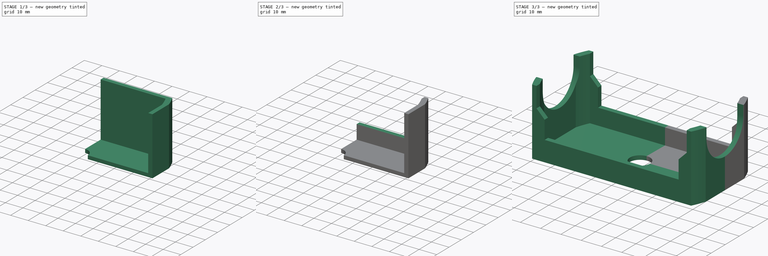
[diagram: build sequence overview — one tinted view per stage of 3, left to right]
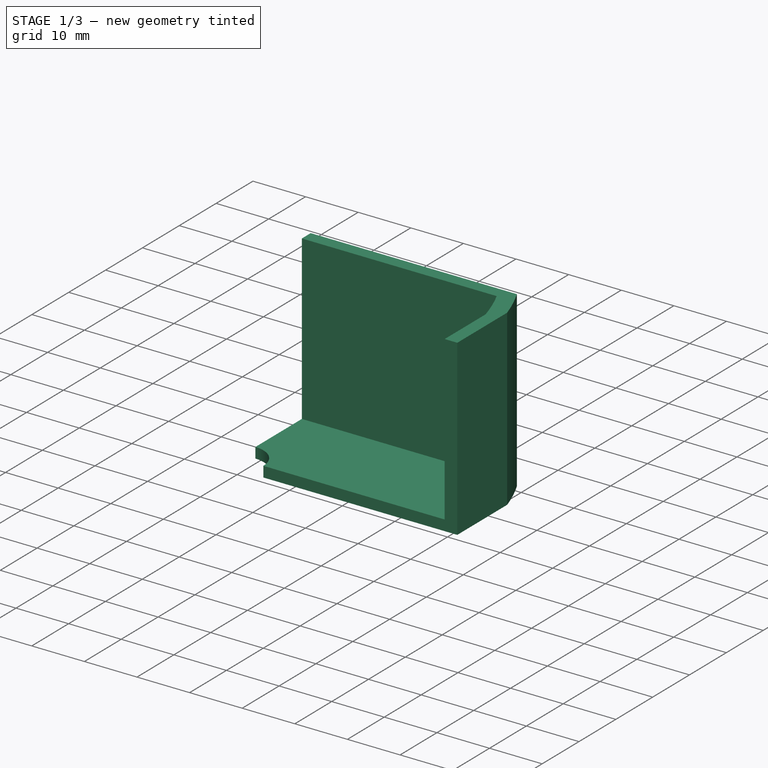
[diagram: stage 1 of 3 — iso view after this stage's code; geometry added in this stage tinted green]
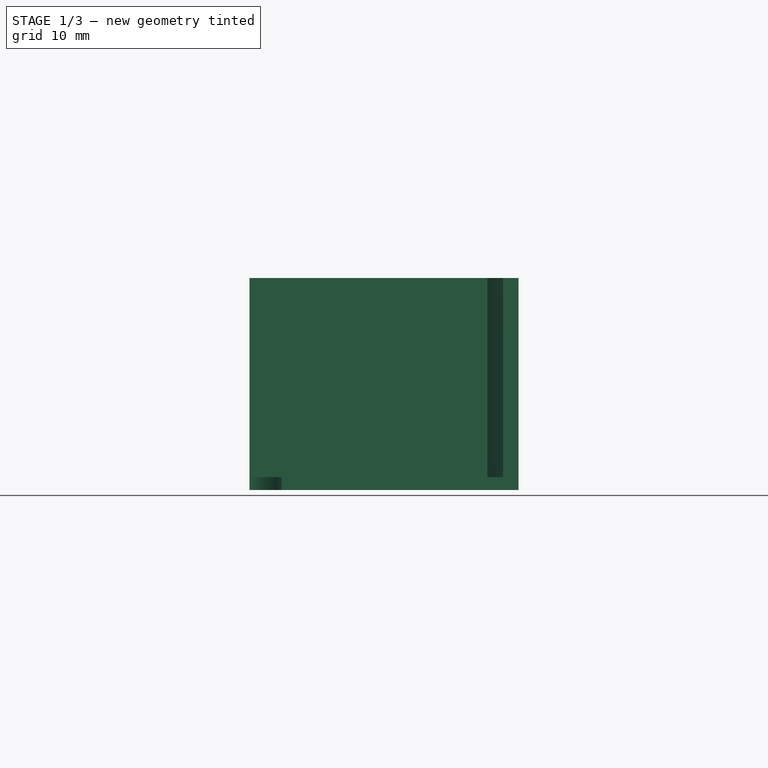
[diagram: stage 1 of 3 — front view after this stage's code; geometry added in this stage tinted green]
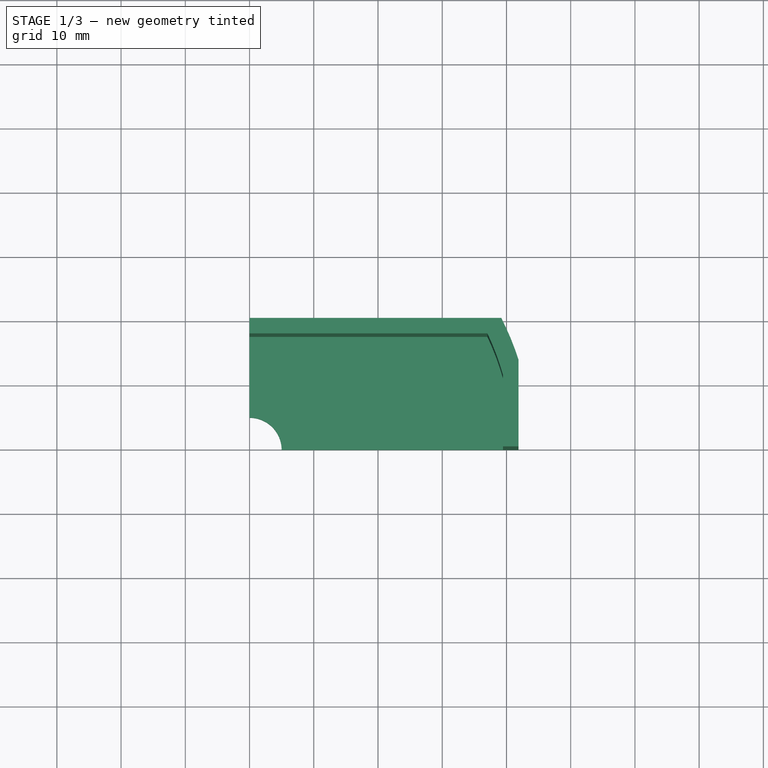
[diagram: stage 1 of 3 — top view after this stage's code; geometry added in this stage tinted green]
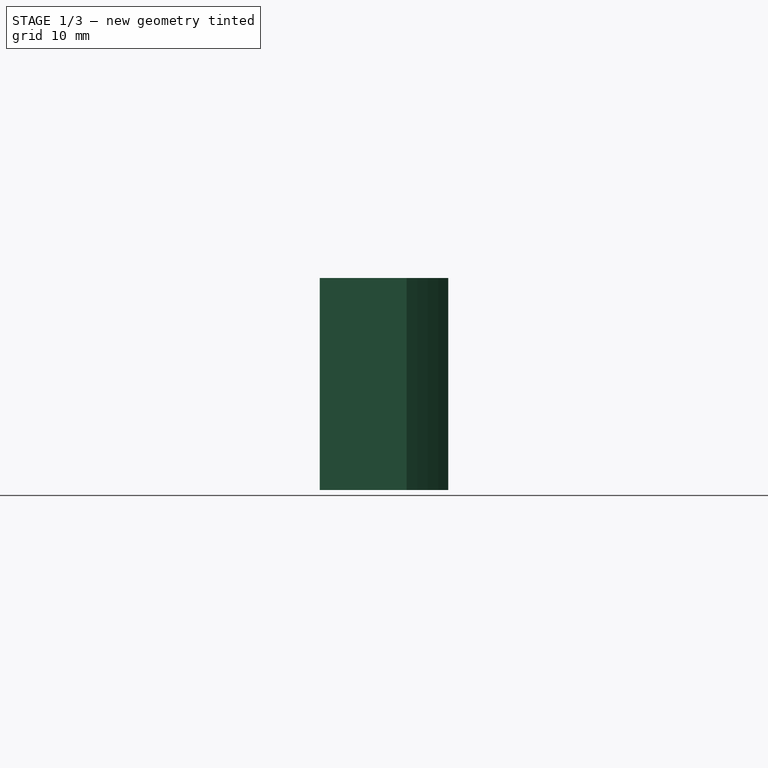
[diagram: stage 1 of 3 — right view after this stage's code; geometry added in this stage tinted green]
FCSTD DOCUMENT  (FreeCAD 0.19R24291 (Git))
Label: Позиционер кольца
License: All rights reserved
LicenseURL: http://en.wikipedia.org/wiki/All_rights_reserved
objects: Sketcher::SketchObject×4, PartDesign::Pad×2, PartDesign::Pocket×2, PartDesign::Mirrored×2, PartDesign::MultiTransform×1, PartDesign::Body×1
note: 16 computed .brp shape members not serialized (recipe doc carries the construction recipe); baked Part::Feature solids carry a one-line shape summary decoded from their .brp

FEATURE [Sketcher::SketchObject] Sketch
  FullyConstrained = true
  MapMode = 5
  Support = -> [XY_Plane]
  sketch-geometry (6):
    g0: ArcOfCircle CenterX=0 CenterY=0 CenterZ=0 NormalX=0 NormalY=0 NormalZ=1 AngleXU=0 Radius=5 StartAngle=0 EndAngle=1.5708
    g1: LineSegment StartX=0 StartY=5 StartZ=0 EndX=0 EndY=20 EndZ=0
    g2: ArcOfCircle CenterX=0 CenterY=0 CenterZ=0 NormalX=0 NormalY=0 NormalZ=1 AngleXU=0 Radius=44 StartAngle=0.312603 EndAngle=0.471862
    g3: LineSegment StartX=0 StartY=20 StartZ=0 EndX=39.1918 EndY=20 EndZ=0
    g4: LineSegment StartX=41.8676 StartY=13.5316 StartZ=0 EndX=41.8676 EndY=0 EndZ=0
    g5: LineSegment StartX=41.8676 StartY=0 StartZ=0 EndX=5 EndY=0 EndZ=0
  constraints (19):
    c: Coincident(g0,g-1)
    c: PointOnObject(g0,g-2)
    c: PointOnObject(g0,g-1)
    c: Coincident(g1,g0)
    c: PointOnObject(g1,g-2)
    c: Coincident(g2,g0)
    c: Coincident(g3,g1)
    c: Coincident(g3,g2)
    c: Horizontal(g3)
    c: Coincident(g4,g2)
    c: PointOnObject(g4,g-1)
    c: Vertical(g4)
    c: Coincident(g5,g4)
    c: Coincident(g5,g0)
    c: Diameter(g0) = 10
    c: Diameter(g2) = 88
    c: Distance(g1,g0) = 20
    c: Distance(g2,g2) = 7
    c: Distance(g3) = 39.1918
FEATURE [PartDesign::Pad] Pad
  Direction = (1,1,1)
  Length = 2
  Length2 = 100
  Profile = -> Sketch
  Type = 0
FEATURE [Sketcher::SketchObject] Sketch001
  FullyConstrained = true
  MapMode = 5
  Support = -> [XY_Plane]
  sketch-geometry (8):
    g0: ArcOfCircle CenterX=0 CenterY=0 CenterZ=0 NormalX=0 NormalY=0 NormalZ=1 AngleXU=0 Radius=44 StartAngle=0.312603 EndAngle=0.471862
    g1: ArcOfCircle CenterX=0 CenterY=0 CenterZ=0 NormalX=0 NormalY=0 NormalZ=1 AngleXU=0 Radius=41 StartAngle=0.274265 EndAngle=0.443682
    g2: LineSegment StartX=37.0303 StartY=17.6 StartZ=0 EndX=0 EndY=17.6 EndZ=0
    g3: LineSegment StartX=0 StartY=17.6 StartZ=0 EndX=0 EndY=20 EndZ=0
    g4: LineSegment StartX=0 StartY=20 StartZ=0 EndX=39.1918 EndY=20 EndZ=0
    g5: LineSegment StartX=39.4676 StartY=11.1044 StartZ=0 EndX=39.4676 EndY=0 EndZ=0
    g6: LineSegment StartX=39.4676 StartY=0 StartZ=0 EndX=41.8676 EndY=0 EndZ=0
    g7: LineSegment StartX=41.8676 StartY=0 StartZ=0 EndX=41.8676 EndY=13.5316 EndZ=0
  constraints (25):
    c: Coincident(g0,g-1)
    c: Coincident(g1,g0)
    c: Coincident(g2,g1)
    c: PointOnObject(g2,g-2)
    c: Horizontal(g2)
    c: Coincident(g3,g2)
    c: PointOnObject(g3,g-2)
    c: Coincident(g4,g3)
    c: Coincident(g4,g0)
    c: Horizontal(g4)
    c: Coincident(g5,g1)
    c: PointOnObject(g5,g-1)
    c: Vertical(g5)
    c: Coincident(g6,g5)
    c: PointOnObject(g6,g-1)
    c: Coincident(g7,g6)
    c: Coincident(g7,g0)
    c: Vertical(g7)
    c: Distance(g6) = 2.4
    c: Distance(g3) = 2.4
    c: Diameter(g1) = 82
    c: Diameter(g0) = 88
    c: Distance(g3,g0) = 20
    c: Distance(g0,g4) = 7
    c: Distance(g2) = 37.0303
FEATURE [PartDesign::Pad] Pad001
  BaseFeature = -> Pad
  Direction = (1,1,1)
  Length = 33
  Length2 = 100
  Profile = -> Sketch001
  Type = 0
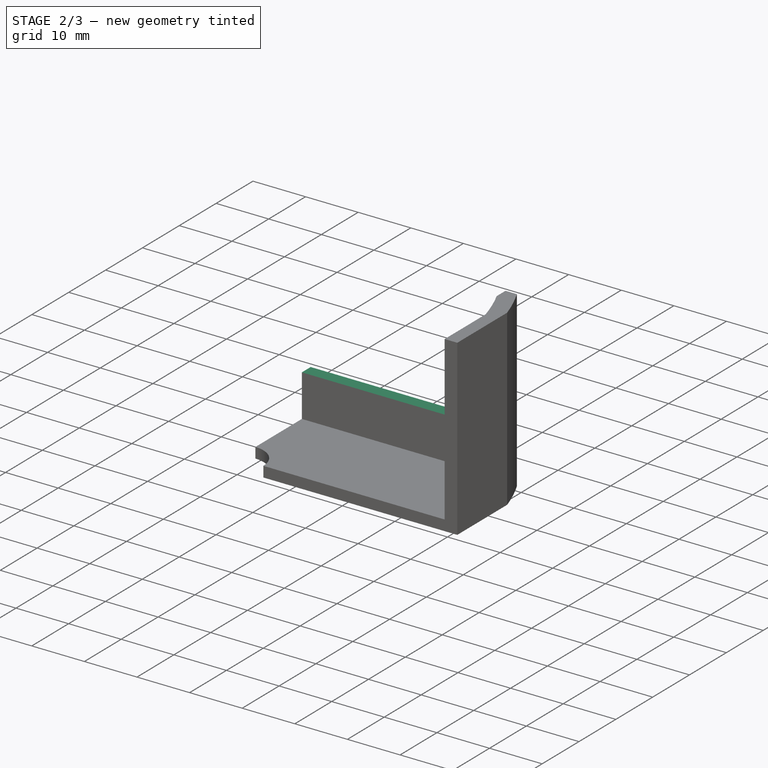
[diagram: stage 2 of 3 — iso view after this stage's code; geometry added in this stage tinted green]
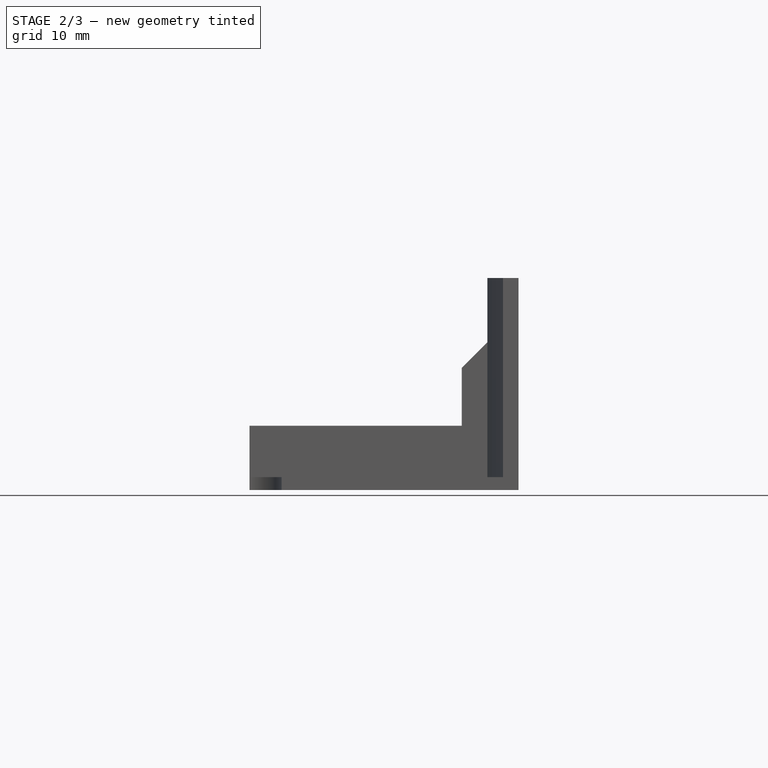
[diagram: stage 2 of 3 — front view after this stage's code; geometry added in this stage tinted green]
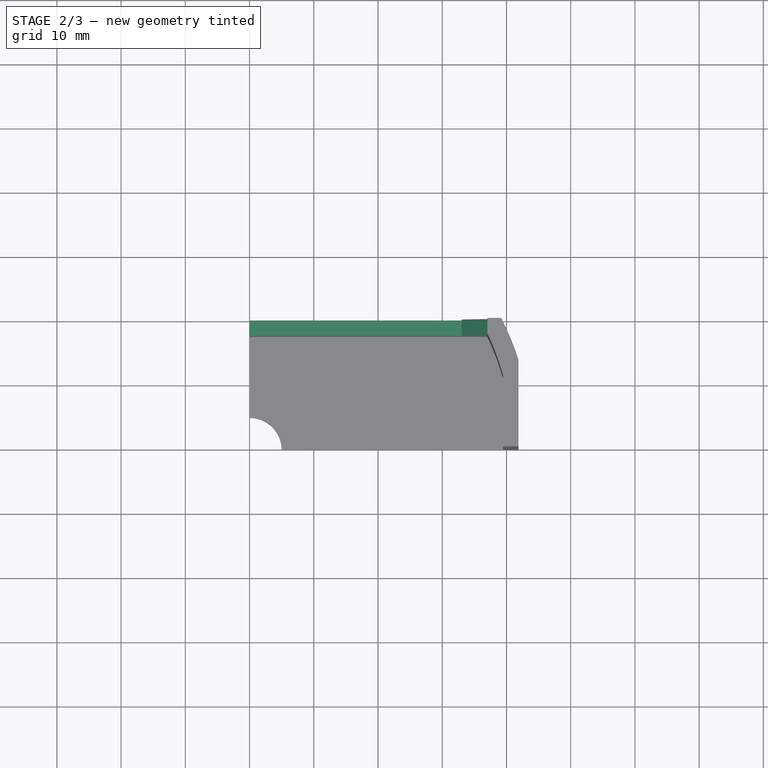
[diagram: stage 2 of 3 — top view after this stage's code; geometry added in this stage tinted green]
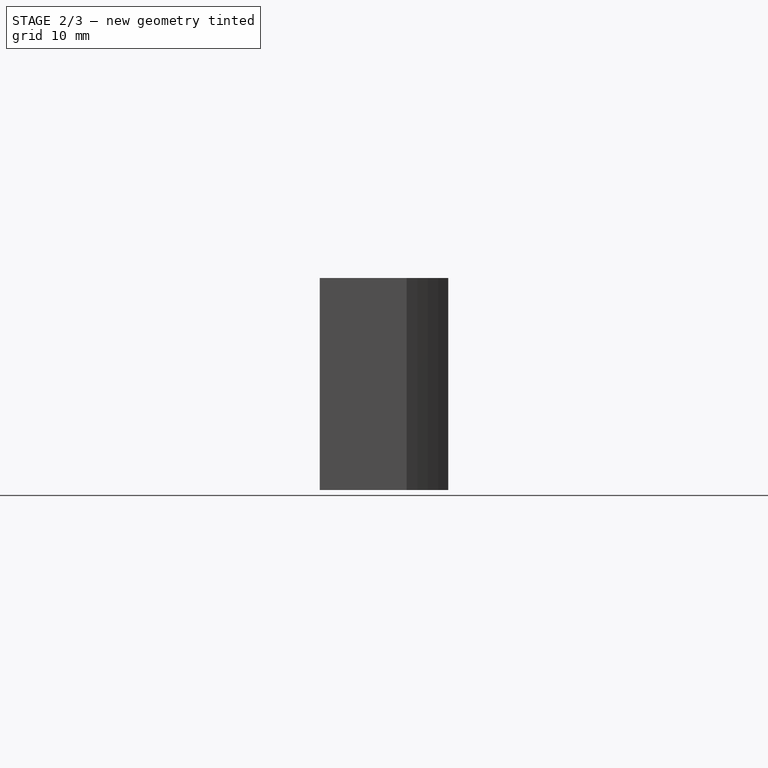
[diagram: stage 2 of 3 — right view after this stage's code; geometry added in this stage tinted green]
FEATURE [Sketcher::SketchObject] Sketch002
  FullyConstrained = true
  MapMode = 5
  Placement = pos=(0,0,0) rot=(1,0,0;1.5708rad)
  Support = -> [XZ_Plane]
  expr: Constraints[16] = Sketch001.Constraints[24]
  expr: Constraints[12] = Pad001.Length
  sketch-geometry (6):
    g0: LineSegment StartX=0 StartY=10 StartZ=0 EndX=33.0303 EndY=10 EndZ=0
    g1: LineSegment StartX=33.0303 StartY=10 StartZ=0 EndX=33.0303 EndY=19 EndZ=0
    g2: LineSegment StartX=33.0303 StartY=19 StartZ=0 EndX=37.0303 EndY=23 EndZ=0
    g3: LineSegment StartX=37.0303 StartY=23 StartZ=0 EndX=37.0303 EndY=33 EndZ=0
    g4: LineSegment StartX=37.0303 StartY=33 StartZ=0 EndX=0 EndY=33 EndZ=0
    g5: LineSegment StartX=0 StartY=33 StartZ=0 EndX=0 EndY=10 EndZ=0
  constraints (18):
    c: PointOnObject(g0,g-2)
    c: Horizontal(g0)
    c: Coincident(g1,g0)
    c: Vertical(g1)
    c: Coincident(g2,g1)
    c: Coincident(g3,g2)
    c: Vertical(g3)
    c: Coincident(g4,g3)
    c: PointOnObject(g4,g-2)
    c: Horizontal(g4)
    c: Coincident(g5,g4)
    c: Coincident(g5,g0)
    c: Distance(g-1,g4) = 33
    c: Distance(g-1,g0) = 10
    c: DistanceX(g1,g2) = 4
    c: Angle(g1,g2) = 2.35619
    c: Distance(g4) = 37.0303
    c: Distance(g3) = 10
FEATURE [PartDesign::Pocket] Pocket
  BaseFeature = -> Pad001
  Length = 5
  Length2 = 100
  Profile = -> Sketch002
  Type = 1
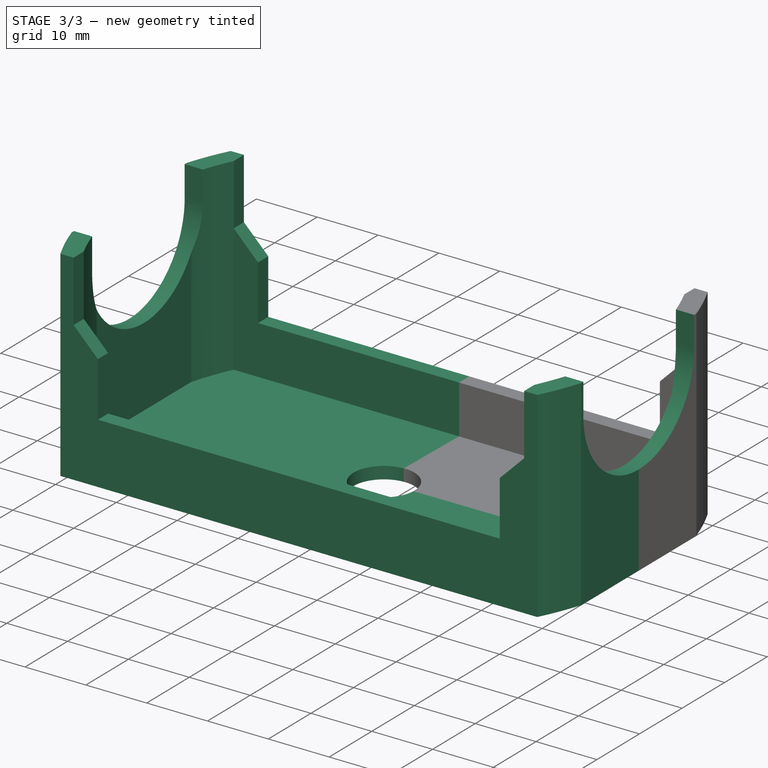
[diagram: stage 3 of 3 — iso view after this stage's code; geometry added in this stage tinted green]
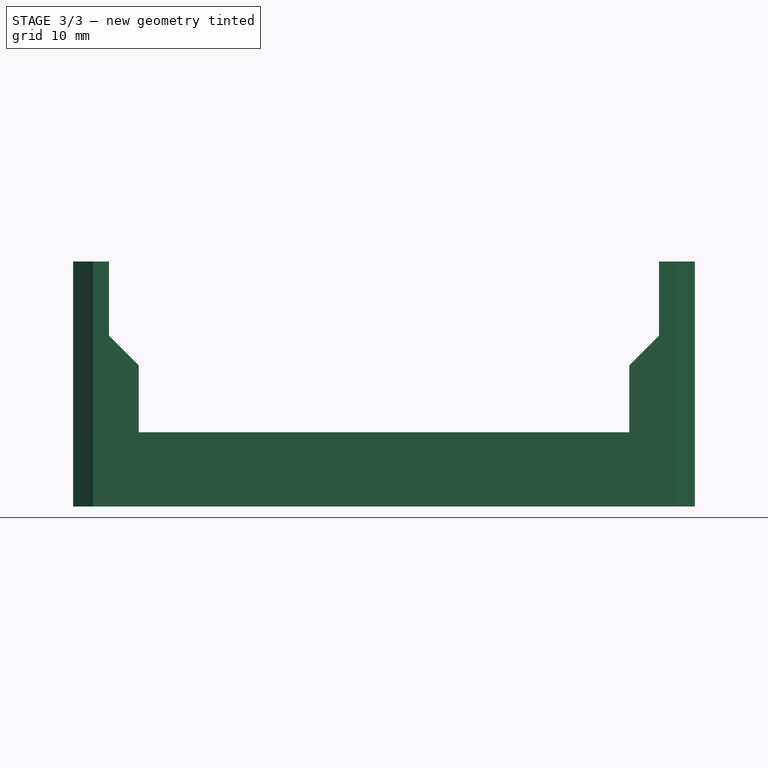
[diagram: stage 3 of 3 — front view after this stage's code; geometry added in this stage tinted green]
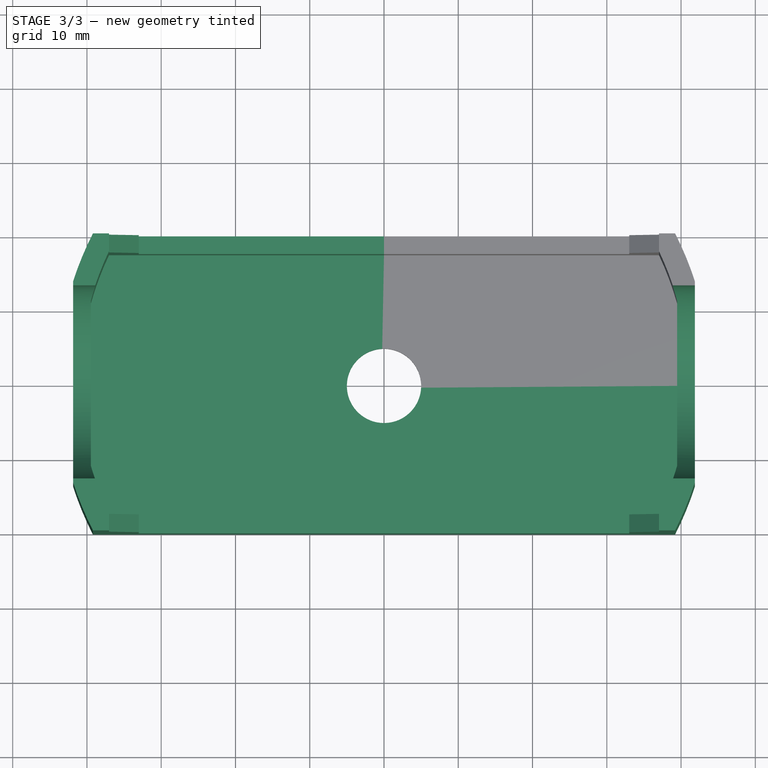
[diagram: stage 3 of 3 — top view after this stage's code; geometry added in this stage tinted green]
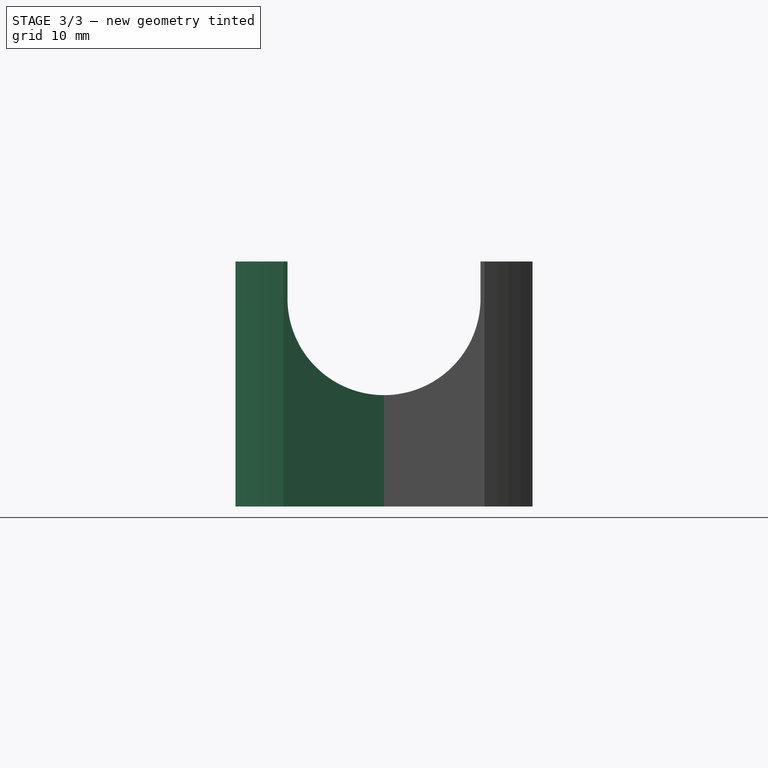
[diagram: stage 3 of 3 — right view after this stage's code; geometry added in this stage tinted green]
FEATURE [Sketcher::SketchObject] Sketch003
  FullyConstrained = true
  MapMode = 5
  Placement = pos=(0,0,0) rot=(0.57735,0.57735,0.57735;2.0944rad)
  Support = -> [YZ_Plane]
  expr: Constraints[11] = Pad001.Length
  sketch-geometry (4):
    g0: LineSegment StartX=-2.4e-15 StartY=15 StartZ=0 EndX=0 EndY=33 EndZ=0
    g1: LineSegment StartX=0 StartY=33 StartZ=0 EndX=13 EndY=33 EndZ=0
    g2: ArcOfCircle CenterX=0 CenterY=28 CenterZ=0 NormalX=0 NormalY=0 NormalZ=1 AngleXU=0 Radius=13 StartAngle=4.71239 EndAngle=6.28318
    g3: LineSegment StartX=13 StartY=28 StartZ=0 EndX=13 EndY=33 EndZ=0
  constraints (13):
    c: PointOnObject(g0,g-2)
    c: Horizontal(g1)
    c: PointOnObject(g2,g0)
    c: Coincident(g2,g0)
    c: Coincident(g3,g2)
    c: Coincident(g3,g1)
    c: Vertical(g3)
    c: Distance(g3) = 5
    c: Tangent(g2,g3)
    c: Coincident(g0,g1)
    c: Diameter(g2) = 26
    c: Distance(g-1,g0) = 33
    c: PointOnObject(g0,g-2)
FEATURE [PartDesign::Pocket] Pocket001
  BaseFeature = -> Pocket
  Length = 5
  Length2 = 100
  Profile = -> Sketch003
  Reversed = true
  Type = 1
FEATURE [PartDesign::Mirrored] Mirrored
  MirrorPlane = -> Sketch [V_Axis]
FEATURE [PartDesign::Mirrored] Mirrored001
  MirrorPlane = -> Sketch [H_Axis]
FEATURE [PartDesign::MultiTransform] MultiTransform
  BaseFeature = -> Pocket001
  Originals = -> [Pad,Pad001,Pocket,Pocket001]
  Transformations = -> [Mirrored,Mirrored001]
FEATURE [PartDesign::Body] Body
  Group = -> [Sketch,Pad,Sketch001,Pad001,Sketch002,Pocket,Sketch003,Pocket001,MultiTransform,Mirrored,Mirrored001]
  Origin = -> Origin
  Tip = -> MultiTransform
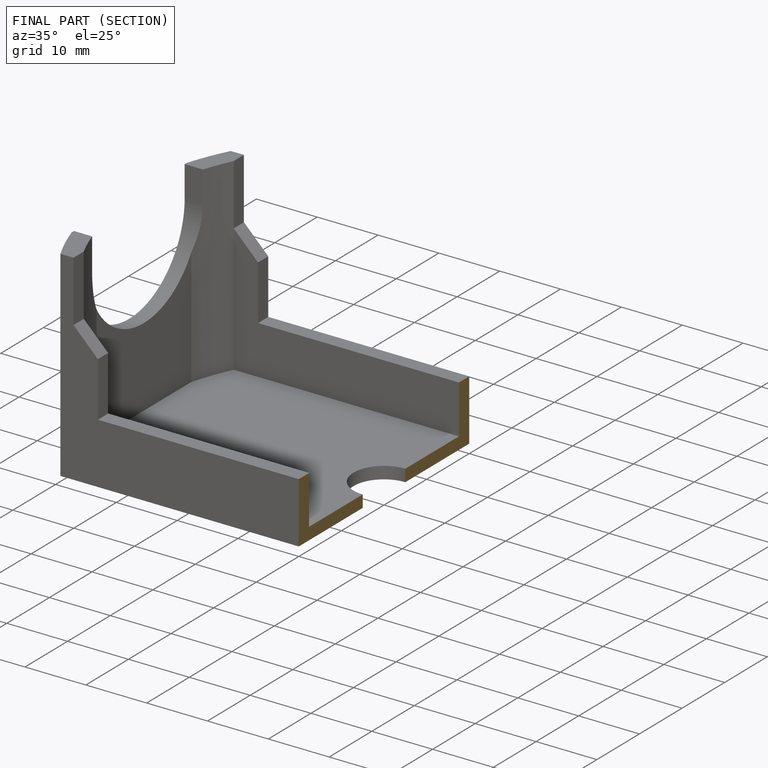
[diagram: finished part — half-section view (interior)]
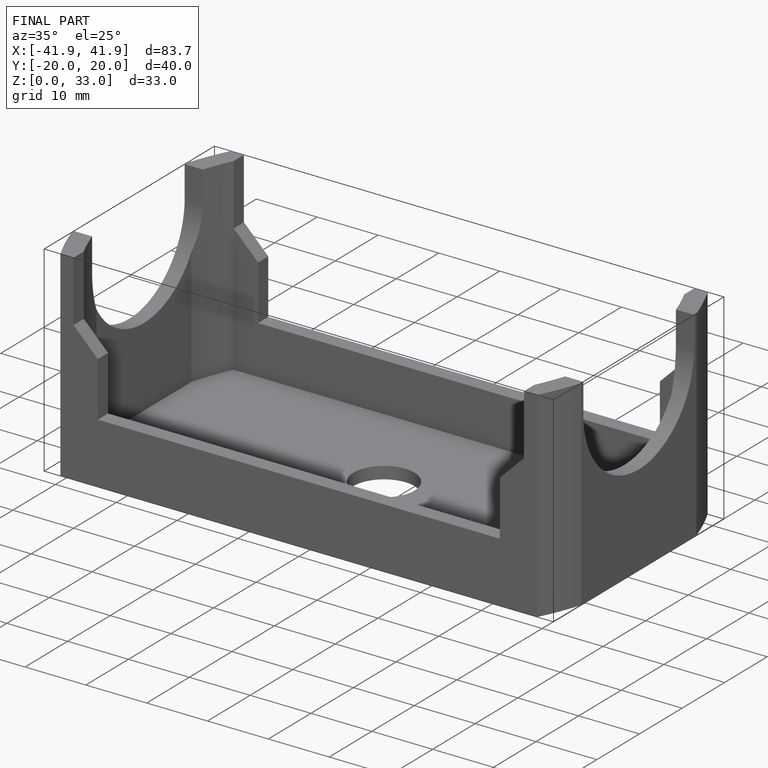
[diagram: finished part — iso view with bounding-box wireframe]
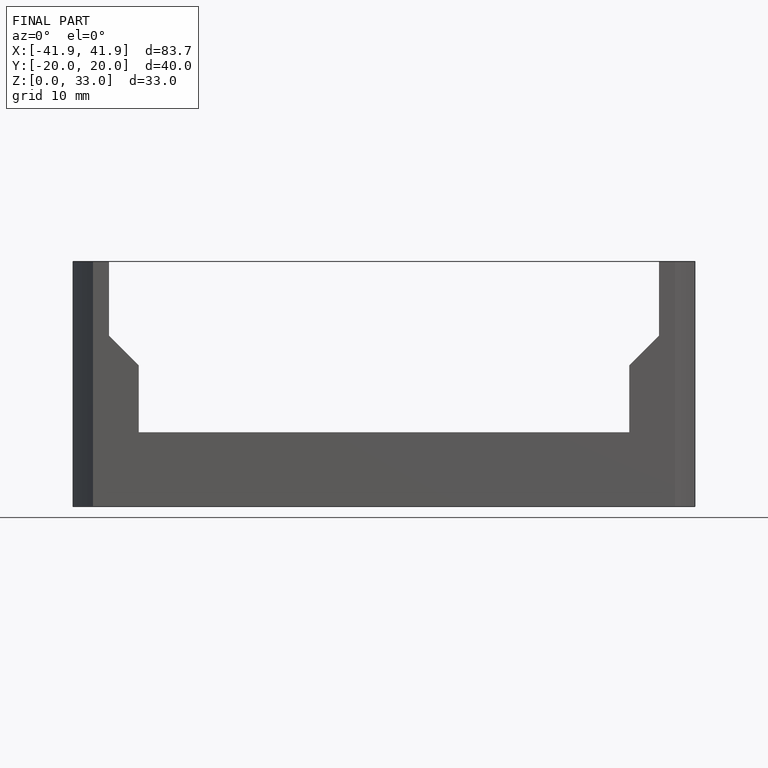
[diagram: finished part — front view with bounding-box wireframe]
